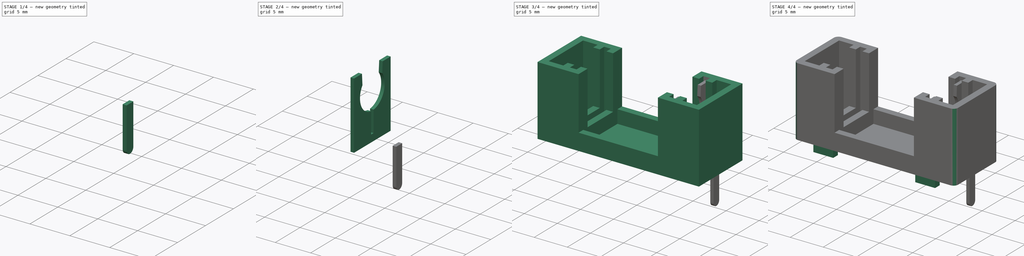
[diagram: build sequence overview — one tinted view per stage of 4, left to right]
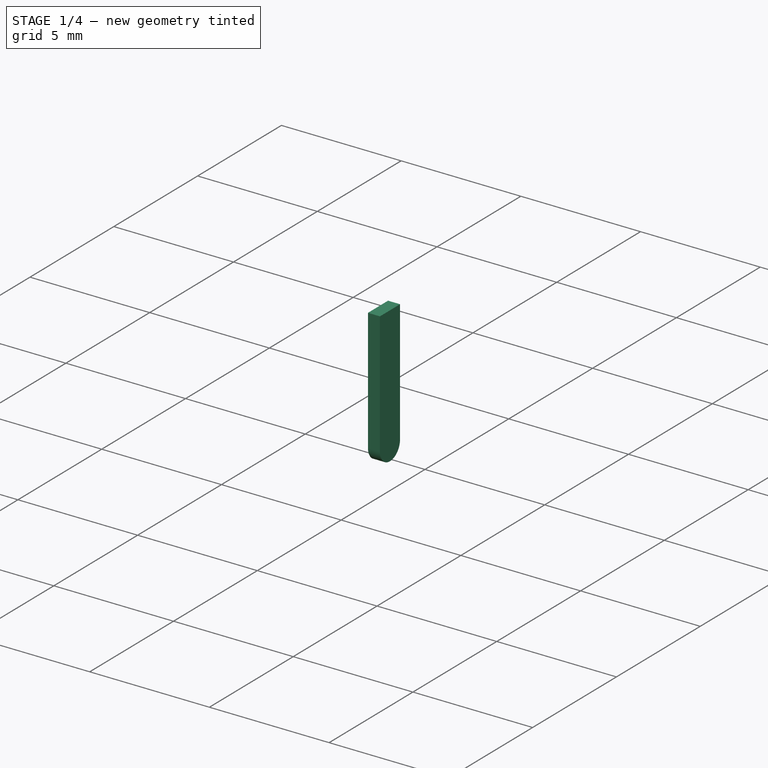
[diagram: stage 1 of 4 — iso view after this stage's code; geometry added in this stage tinted green]
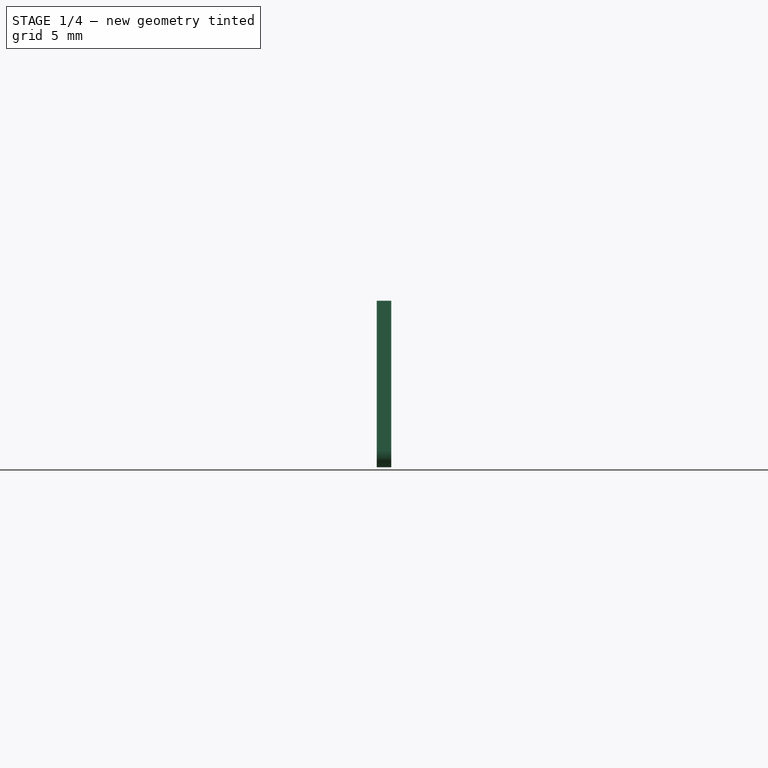
[diagram: stage 1 of 4 — front view after this stage's code; geometry added in this stage tinted green]
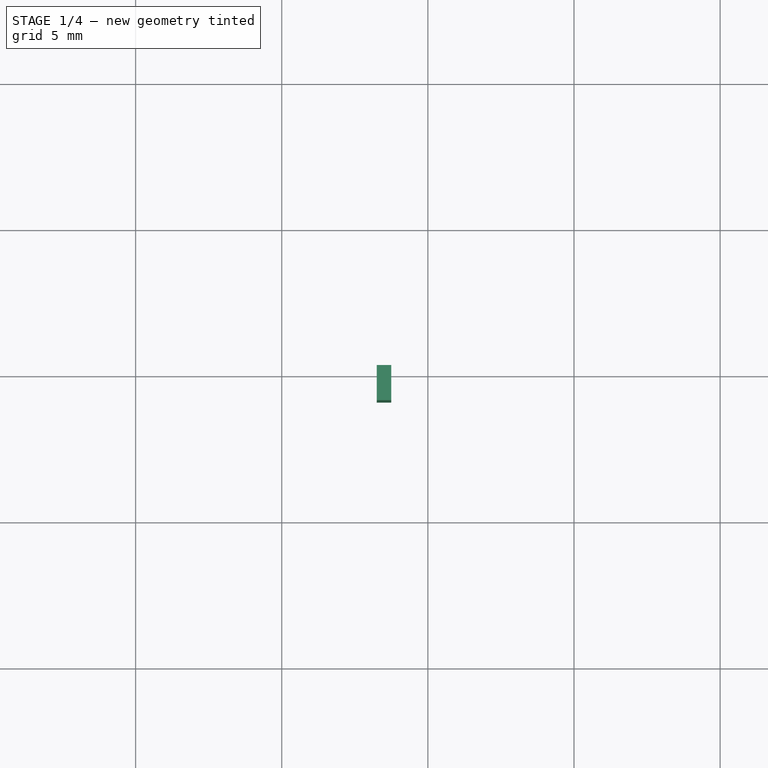
[diagram: stage 1 of 4 — top view after this stage's code; geometry added in this stage tinted green]
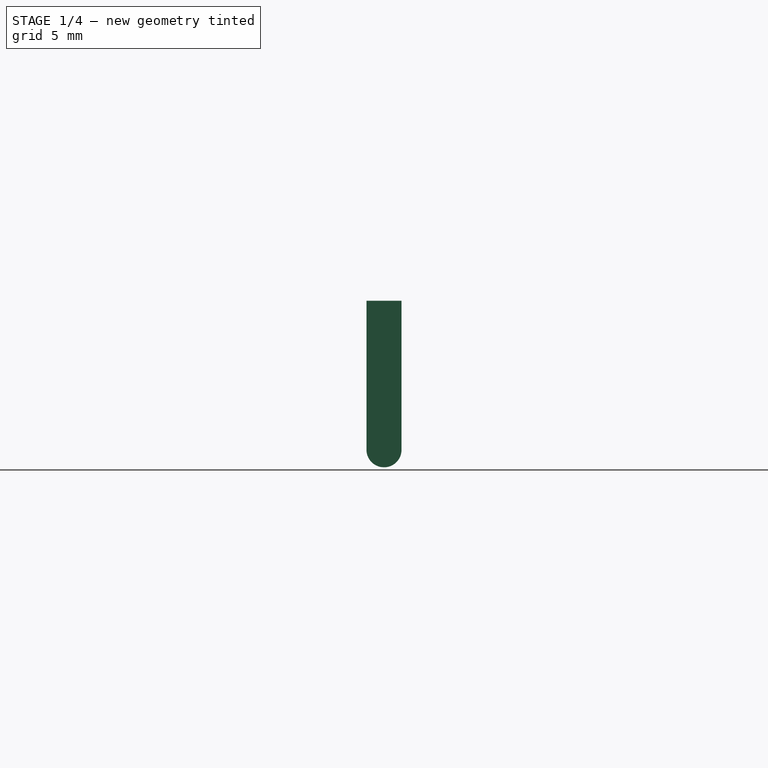
[diagram: stage 1 of 4 — right view after this stage's code; geometry added in this stage tinted green]
FCSTD DOCUMENT  (FreeCAD 0.17R13522 (Git))
Label: FUSE-HOLDER-PTF78
License: All rights reserved
LicenseURL: http://fr.wikipedia.org/wiki/<copyright redacted>
objects: Sketcher::SketchObject×6, PartDesign::Pad×4, PartDesign::Body×3, PartDesign::Pocket×2, PartDesign::FeatureBase×2, Spreadsheet::Sheet×1, PartDesign::Fillet×1
note: 24 computed .brp shape members not serialized (recipe doc carries the construction recipe); baked Part::Feature solids carry a one-line shape summary decoded from their .brp

FEATURE [PartDesign::Pad] Pad003
  Length = 0.5
  Length2 = 100
  Midplane = true
  Placement = pos=(0,0,0) rot=(0.57735,0.57735,0.57735;2.0944rad)
  Profile = -> Sketch005
  Type = 0
  expr: Length = Spreadsheet.pin_t
FEATURE [PartDesign::Body] Body002
  Group = -> [Sketch005,Pad003]
  Origin = -> Origin002
  Placement = pos=(0.9,4.7,-4) rot=(0,0,1;0rad)
  Tip = -> Pad003
FEATURE [PartDesign::FeatureBase] Clone001
  BaseFeature = -> Body002
  Placement = pos=(23.5,4.7,-4) rot=(0,0,1;0rad)
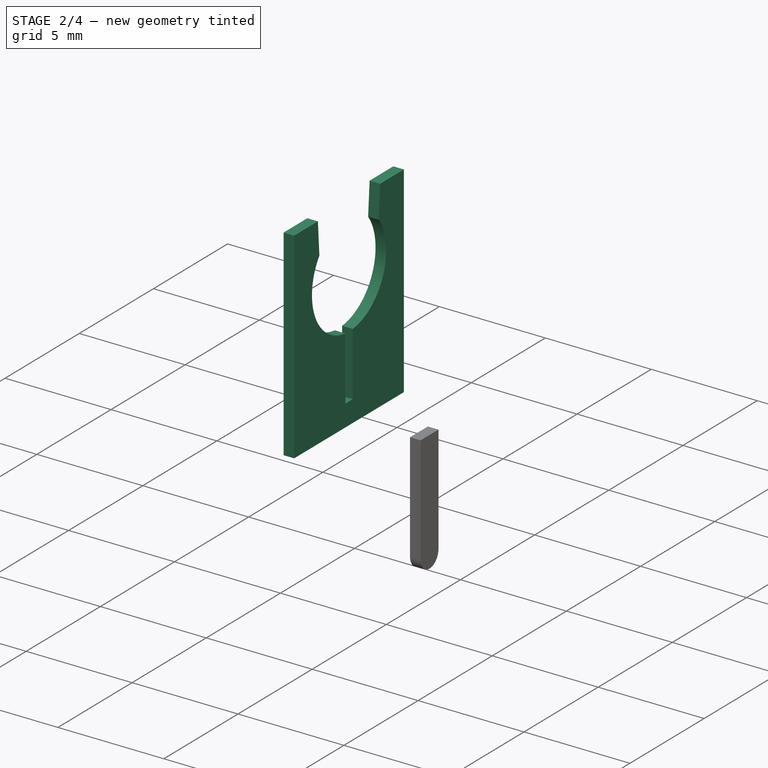
[diagram: stage 2 of 4 — iso view after this stage's code; geometry added in this stage tinted green]
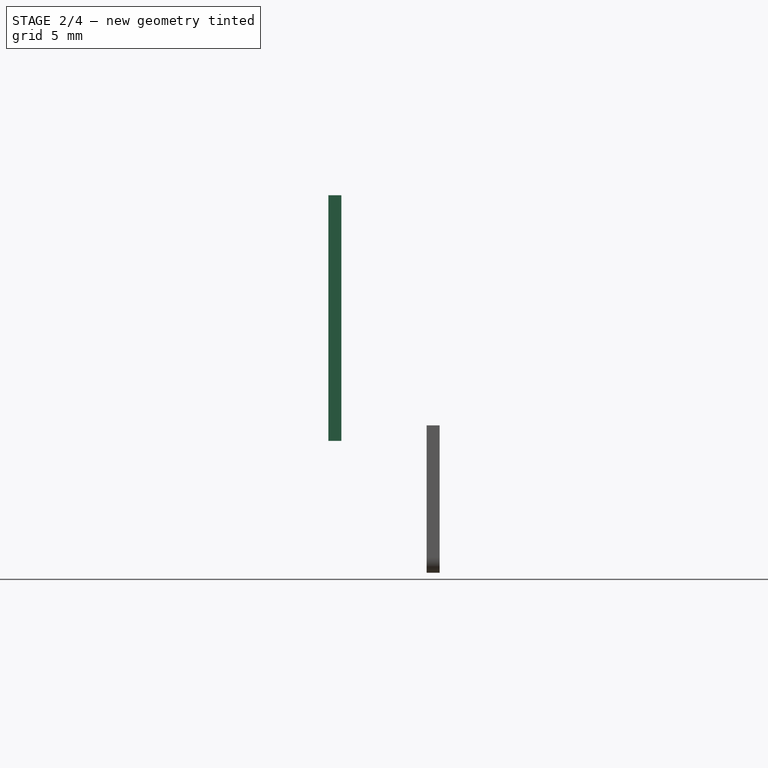
[diagram: stage 2 of 4 — front view after this stage's code; geometry added in this stage tinted green]
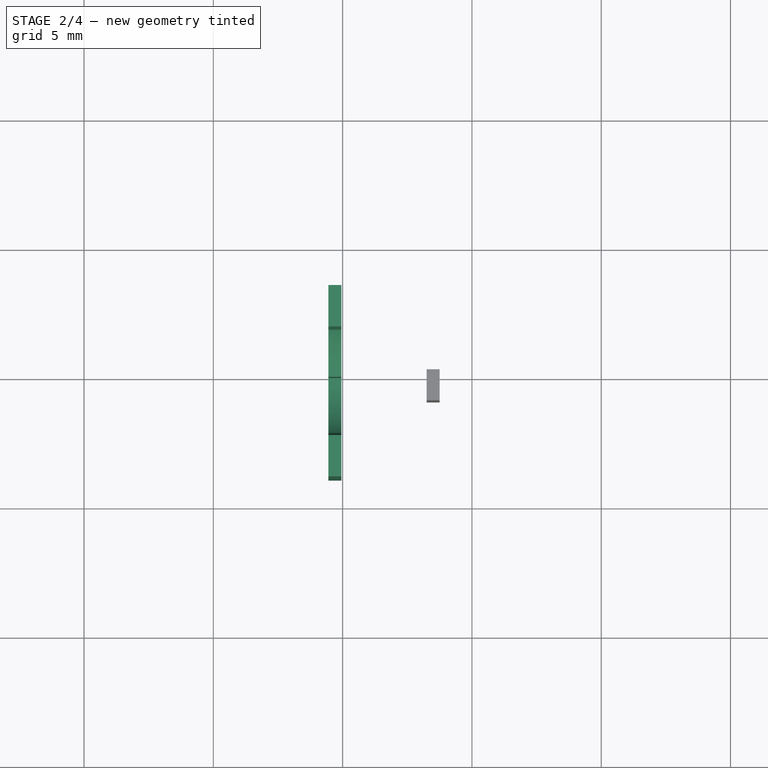
[diagram: stage 2 of 4 — top view after this stage's code; geometry added in this stage tinted green]
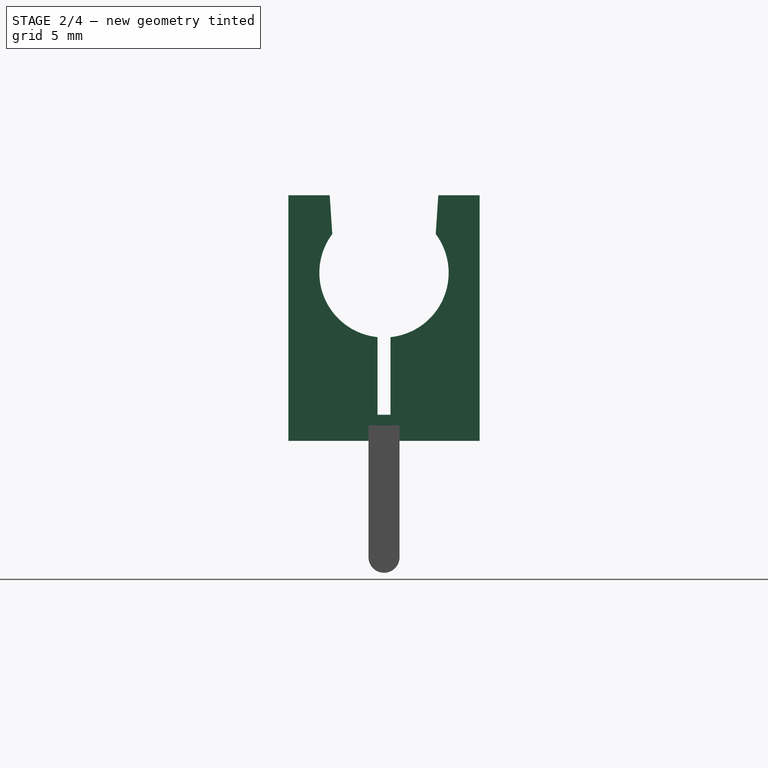
[diagram: stage 2 of 4 — right view after this stage's code; geometry added in this stage tinted green]
FEATURE [PartDesign::Body] Body
  Group = -> [Sketch,Pad,Sketch001,Pocket,Sketch002,Pocket001,Sketch003,Pad001,Fillet]
  Origin = -> Origin
  Tip = -> Fillet
FEATURE [Sketcher::SketchObject] Sketch004
  MapMode = 5
  Placement = pos=(0,0,0) rot=(0.57735,0.57735,0.57735;2.0944rad)
  Support = -> [YZ_Plane001]
  expr: Constraints[34] = Spreadsheet.fuse_d / 2
  expr: Constraints[9] = Spreadsheet.width - Spreadsheet.thickness * 2
  sketch-geometry (12):
    g0: LineSegment StartX=-3.7 StartY=3 StartZ=0 EndX=-3.7 EndY=-6.5 EndZ=0
    g1: LineSegment StartX=-3.7 StartY=-6.5 StartZ=0 EndX=3.7 EndY=-6.5 EndZ=0
    g2: LineSegment StartX=3.7 StartY=-6.5 StartZ=0 EndX=3.7 EndY=3 EndZ=0
    g3: LineSegment StartX=3.7 StartY=3 StartZ=0 EndX=2.1 EndY=3 EndZ=0
    g4: LineSegment StartX=-3.7 StartY=3 StartZ=0 EndX=-2.1 EndY=3 EndZ=0
    g5: LineSegment StartX=-2.1 StartY=3 StartZ=0 EndX=-2 EndY=1.5 EndZ=0
    g6: LineSegment StartX=2.1 StartY=3 StartZ=0 EndX=2 EndY=1.5 EndZ=0
    g7: ArcOfCircle CenterX=0 CenterY=0 CenterZ=0 NormalX=0 NormalY=0 NormalZ=1 AngleXU=0 Radius=2.5 StartAngle=2.49809 EndAngle=4.61222
    g8: ArcOfCircle CenterX=0 CenterY=0 CenterZ=0 NormalX=0 NormalY=0 NormalZ=1 AngleXU=0 Radius=2.5 StartAngle=4.81256 EndAngle=6.92669
    g9: LineSegment StartX=-0.25 StartY=-2.48747 StartZ=0 EndX=-0.25 EndY=-5.48747 EndZ=0
    g10: LineSegment StartX=-0.25 StartY=-5.48747 StartZ=0 EndX=0.25 EndY=-5.48747 EndZ=0
    g11: LineSegment StartX=0.25 StartY=-5.48747 StartZ=0 EndX=0.25 EndY=-2.48747 EndZ=0
  constraints (36):
    c: Vertical(g0)
    c: Coincident(g0,g1)
    c: Horizontal(g1)
    c: Vertical(g2)
    c: Coincident(g2,g3)
    c: Horizontal(g3)
    c: Coincident(g0,g4)
    c: Horizontal(g4)
    c: Horizontal(g3,g4)
    c: DistanceX(g0,g2) = 7.4
    c: Coincident(g5,g4)
    c: Coincident(g6,g3)
    c: Horizontal(g6,g5)
    c: Equal(g6,g5)
    c: DistanceY(g0,g0) = 9.5
    c: DistanceX(g5,g6) = 4
    c: DistanceX(g4,g3) = 4.2
    c: Coincident(g1,g2)
    c: Symmetric(g0,g1,g-2)
    c: Coincident(g7,g-1)
    c: Coincident(g7,g5)
    c: Coincident(g8,g-1)
    c: Coincident(g8,g6)
    c: Vertical(g9)
    c: Coincident(g10,g9)
    c: Horizontal(g10)
    c: Coincident(g11,g10)
    c: Vertical(g11)
    c: Coincident(g11,g8)
    c: Coincident(g7,g9)
    c: Horizontal(g7,g8)
    c: Symmetric(g7,g8,g-2)
    c: DistanceY(g9,g9) = 3
    c: DistanceX(g10,g10) = 0.5
    c: Radius(g7) = 2.5
    c: DistanceY(g1,g-1) = 6.5
FEATURE [PartDesign::Pad] Pad002
  Length = 0.5
  Length2 = 100
  Midplane = true
  Placement = pos=(0,0,0) rot=(0.57735,0.57735,0.57735;2.0944rad)
  Profile = -> Sketch004
  Type = 0
  expr: Length = Spreadsheet.pin_t
FEATURE [PartDesign::Body] Body001
  Group = -> [Sketch004,Pad002]
  Origin = -> Origin001
  Placement = pos=(4.7,4.7,7) rot=(0,0,1;0rad)
  Tip = -> Pad002
FEATURE [Sketcher::SketchObject] Sketch005
  MapMode = 5
  Placement = pos=(0,0,0) rot=(0.57735,0.57735,0.57735;2.0944rad)
  Support = -> [YZ_Plane002]
  expr: Constraints[6] = Spreadsheet.pin_l + Spreadsheet.thickness + Spreadsheet.pin_w / 2
  expr: Constraints[4] = Spreadsheet.pin_w
  sketch-geometry (4):
    g0: LineSegment StartX=-0.6 StartY=5.1 StartZ=0 EndX=-0.6 EndY=0 EndZ=0
    g1: ArcOfCircle CenterX=0 CenterY=0 CenterZ=0 NormalX=0 NormalY=0 NormalZ=1 AngleXU=0 Radius=0.6 StartAngle=3.14159 EndAngle=6.28319
    g2: LineSegment StartX=0.6 StartY=0 StartZ=0 EndX=0.6 EndY=5.1 EndZ=0
    g3: LineSegment StartX=-0.6 StartY=5.1 StartZ=0 EndX=0.6 EndY=5.1 EndZ=0
  constraints (11):
    c: Vertical(g0)
    c: Tangent(g1,g2) = -1.5708
    c: Vertical(g2)
    c: Horizontal(g0,g1)
    c: DistanceX(g0,g1) = 1.2
    c: Coincident(g1,g0)
    c: DistanceY(g1,g2) = 5.1
    c: Coincident(g1,g-1)
    c: Coincident(g3,g0)
    c: Coincident(g3,g2)
    c: Horizontal(g3)
FEATURE [PartDesign::FeatureBase] Clone
  BaseFeature = -> Body001
  Placement = pos=(19.7,4.7,7) rot=(0,0,1;0rad)
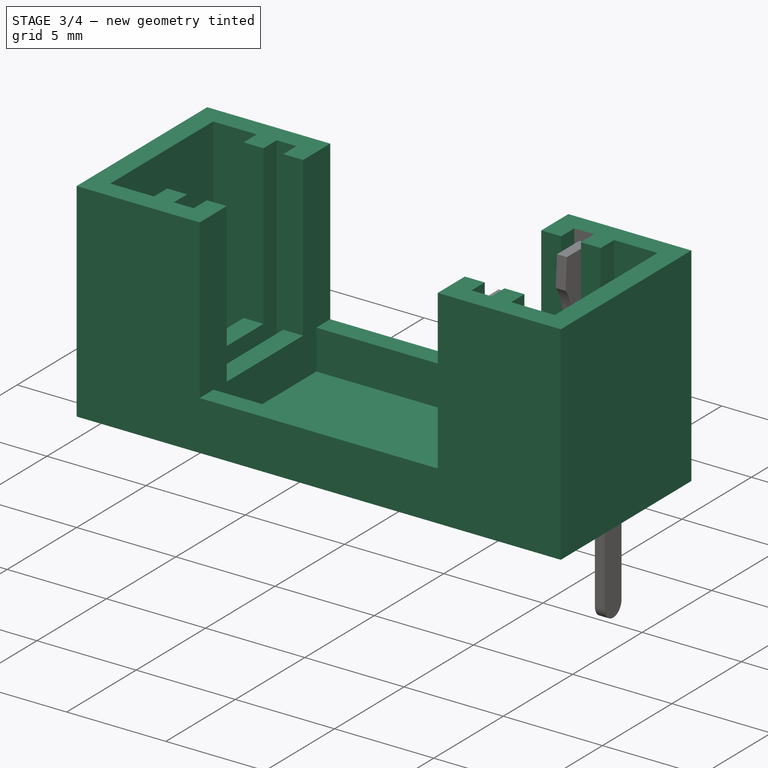
[diagram: stage 3 of 4 — iso view after this stage's code; geometry added in this stage tinted green]
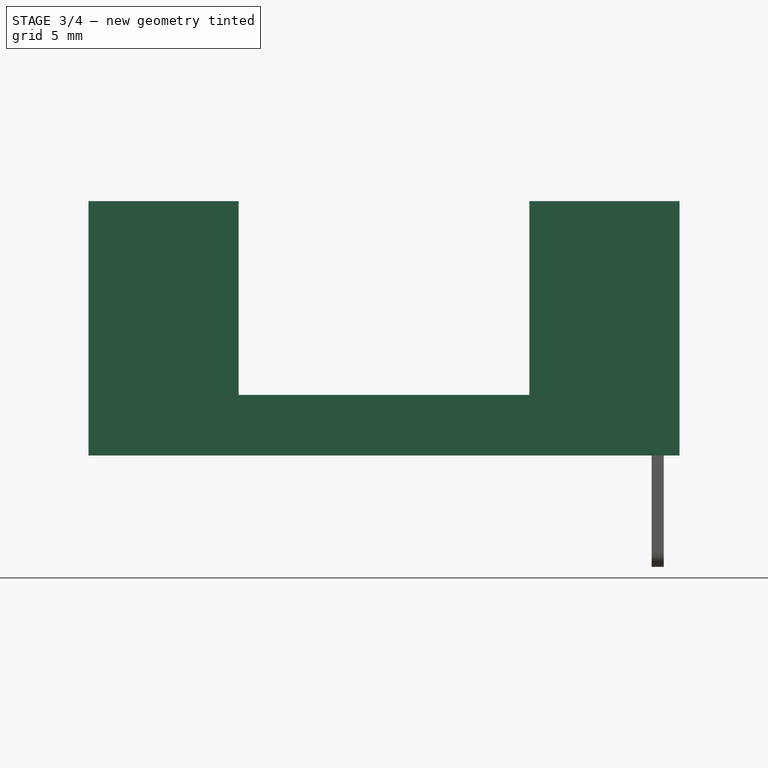
[diagram: stage 3 of 4 — front view after this stage's code; geometry added in this stage tinted green]
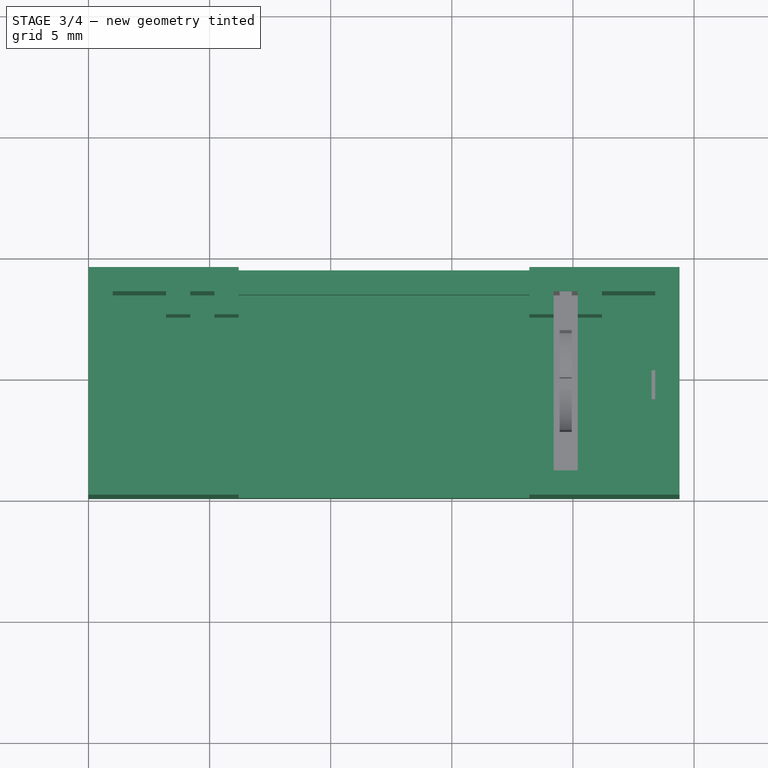
[diagram: stage 3 of 4 — top view after this stage's code; geometry added in this stage tinted green]
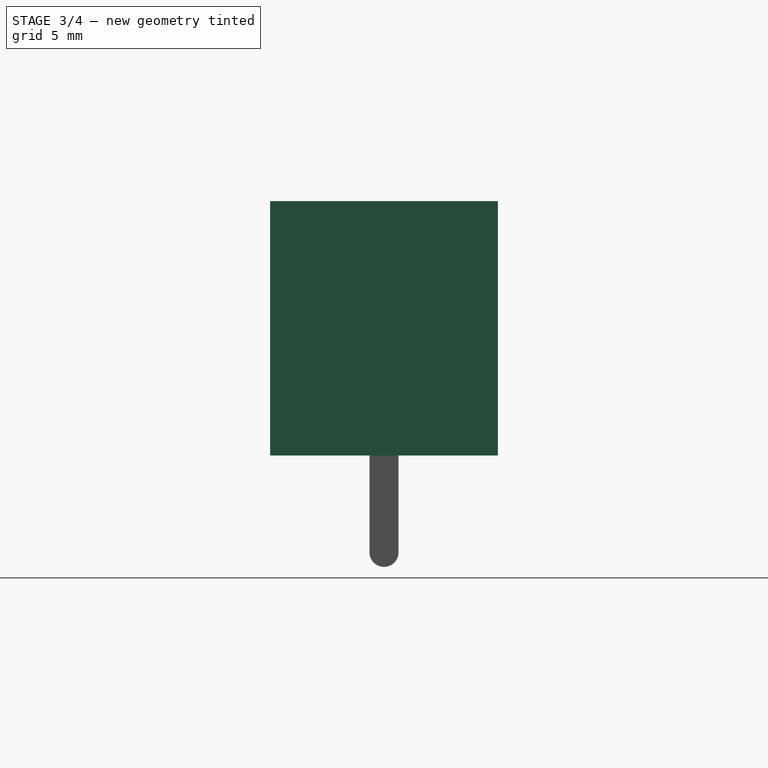
[diagram: stage 3 of 4 — right view after this stage's code; geometry added in this stage tinted green]
FEATURE [Sketcher::SketchObject] Sketch
  MapMode = 5
  Support = -> [XY_Plane]
  expr: Constraints[10] = Spreadsheet.width
  expr: Constraints[9] = Spreadsheet.length
  sketch-geometry (4):
    g0: LineSegment StartX=0 StartY=9.4 StartZ=0 EndX=24.4 EndY=9.4 EndZ=0
    g1: LineSegment StartX=24.4 StartY=9.4 StartZ=0 EndX=24.4 EndY=0 EndZ=0
    g2: LineSegment StartX=24.4 StartY=0 StartZ=0 EndX=0 EndY=0 EndZ=0
    g3: LineSegment StartX=0 StartY=0 StartZ=0 EndX=0 EndY=9.4 EndZ=0
  constraints (11):
    c: Coincident(g0,g1)
    c: Coincident(g1,g2)
    c: Coincident(g2,g3)
    c: Coincident(g3,g0)
    c: Horizontal(g0)
    c: Horizontal(g2)
    c: Vertical(g1)
    c: Vertical(g3)
    c: Coincident(g2,g-1)
    c: DistanceX(g0) = 24.4
    c: DistanceY(g0) = 9.4
FEATURE [PartDesign::Pad] Pad
  Length = 10.5
  Length2 = 100
  Profile = -> Sketch
  Type = 0
  expr: Length = Spreadsheet.height
FEATURE [Sketcher::SketchObject] Sketch001
  MapMode = 5
  Placement = pos=(0,0,10.5) rot=(0,0,1;0rad)
  Support = -> [Pad]
  expr: Constraints[60] = Spreadsheet.pin_t * 2
  expr: Constraints[4] = Spreadsheet.length - Spreadsheet.thickness
  expr: Constraints[5] = Spreadsheet.width - Spreadsheet.thickness
  expr: Constraints[56] = Spreadsheet.thickness
  expr: Constraints[22] = Spreadsheet.thickness
  expr: Constraints[8] = Spreadsheet.length / 2 - Spreadsheet.opening / 2
  expr: Constraints[58] = Spreadsheet.length / 2 + Spreadsheet.opening / 2
  expr: Constraints[3] = Spreadsheet.thickness
  expr: Constraints[57] = Spreadsheet.thickness
  expr: Constraints[2] = Spreadsheet.thickness
  expr: Constraints[59] = Spreadsheet.pin_t * 2
  expr: Constraints[9] = Spreadsheet.thickness
  sketch-geometry (20):
    g0: LineSegment StartX=23.4 StartY=8.4 StartZ=0 EndX=23.4 EndY=1 EndZ=0
    g1: LineSegment StartX=1 StartY=1 StartZ=0 EndX=1 EndY=8.4 EndZ=0
    g2: LineSegment StartX=6.2 StartY=8.4 StartZ=0 EndX=6.2 EndY=1 EndZ=0
    g3: LineSegment StartX=5.2 StartY=1 StartZ=0 EndX=5.2 EndY=8.4 EndZ=0
    g4: LineSegment StartX=3.2 StartY=8.4 StartZ=0 EndX=3.2 EndY=1 EndZ=0
    g5: LineSegment StartX=4.2 StartY=8.4 StartZ=0 EndX=4.2 EndY=1 EndZ=0
    g6: LineSegment StartX=1 StartY=8.4 StartZ=0 EndX=3.2 EndY=8.4 EndZ=0
    g7: LineSegment StartX=4.2 StartY=8.4 StartZ=0 EndX=5.2 EndY=8.4 EndZ=0
    g8: LineSegment StartX=5.2 StartY=1 StartZ=0 EndX=4.2 EndY=1 EndZ=0
    g9: LineSegment StartX=3.2 StartY=1 StartZ=0 EndX=1 EndY=1 EndZ=0
    g10: LineSegment StartX=21.2 StartY=8.4 StartZ=0 EndX=21.2 EndY=1 EndZ=0
    g11: LineSegment StartX=20.2 StartY=8.4 StartZ=0 EndX=20.2 EndY=1 EndZ=0
    g12: LineSegment StartX=19.2 StartY=8.4 StartZ=0 EndX=19.2 EndY=1 EndZ=0
    g13: LineSegment StartX=18.2 StartY=8.4 StartZ=0 EndX=18.2 EndY=1 EndZ=0
    g14: LineSegment StartX=18.2 StartY=8.4 StartZ=0 EndX=6.2 EndY=8.4 EndZ=0
    g15: LineSegment StartX=6.2 StartY=1 StartZ=0 EndX=18.2 EndY=1 EndZ=0
    g16: LineSegment StartX=19.2 StartY=1 StartZ=0 EndX=20.2 EndY=1 EndZ=0
    g17: LineSegment StartX=21.2 StartY=1 StartZ=0 EndX=23.4 EndY=1 EndZ=0
    g18: LineSegment StartX=23.4 StartY=8.4 StartZ=0 EndX=21.2 EndY=8.4 EndZ=0
    g19: LineSegment StartX=20.2 StartY=8.4 StartZ=0 EndX=19.2 EndY=8.4 EndZ=0
  constraints (61):
    c: Vertical(g0)
    c: Vertical(g1)
    c: DistanceX(g1) = 1
    c: DistanceY(g1) = 1
    c: DistanceX(g0) = 23.4
    c: DistanceY(g0) = 8.4
    c: Vertical(g2)
    c: Vertical(g3)
    c: DistanceX(g-1,g2) = 6.2
    c: DistanceX(g3,g2) = 1
    c: Vertical(g4)
    c: Vertical(g5)
    c: Coincident(g6,g1)
    c: Coincident(g6,g4)
    c: Horizontal(g6)
    c: Coincident(g7,g5)
    c: Coincident(g7,g3)
    c: Coincident(g8,g3)
    c: Coincident(g8,g5)
    c: Horizontal(g8)
    c: Coincident(g9,g4)
    c: Horizontal(g9)
    c: DistanceX(g4,g5) = 1
    c: Coincident(g9,g1)
    c: Horizontal(g5,g4)
    c: Horizontal(g7)
    c: Horizontal(g3,g2)
    c: Horizontal(g2,g3)
    c: Horizontal(g5,g4)
    c: Vertical(g10)
    c: Vertical(g11)
    c: Vertical(g12)
    c: Vertical(g13)
    c: Coincident(g14,g13)
    c: Coincident(g14,g2)
    c: Horizontal(g14)
    c: Coincident(g15,g2)
    c: Coincident(g15,g13)
    c: Horizontal(g15)
    c: Coincident(g16,g12)
    c: Coincident(g16,g11)
    c: Horizontal(g16)
    c: Horizontal(g13,g12)
    c: Horizontal(g11,g10)
    c: Coincident(g17,g10)
    c: Coincident(g17,g0)
    c: Horizontal(g17)
    c: PointOnObject(g18,g0)
    c: Coincident(g18,g10)
    c: Coincident(g19,g11)
    c: Coincident(g19,g12)
    c: Horizontal(g19)
    c: Horizontal(g18)
    c: Coincident(g18,g0)
    c: Horizontal(g11,g10)
    c: Horizontal(g10,g13)
    c: DistanceX(g13,g12) = 1
    c: DistanceX(g11,g10) = 1
    c: DistanceX(g-1,g13) = 18.2
    c: DistanceX(g8,g8) = 1
    c: DistanceX(g16,g16) = 1
FEATURE [PartDesign::Pocket] Pocket
  BaseFeature = -> Pad
  Length = 10
  Length2 = 100
  Profile = -> Sketch001
  Type = 0
FEATURE [Spreadsheet::Sheet] Spreadsheet
  cells = A1=width; B1(width)=9.4000000000000004; A2=length; B2(length)=24.399999999999999; A3=thickness; B3(thickness)=1; A4=height; B4(height)=10.5; A5=opening; B5(opening)=12; A6=opening_height; B6(opening_height)=8; A7=fuse_d; B7(fuse_d)=5; A8=fuse_l; B8(fuse_l)=20; A9=pin_t; B9(pin_t)=0.5; A10=pin_w; B10(pin_w)=1.2; A11=pin_rm; B11(pin_rm)=22.600000000000001; A12=pin_l; B12(pin_l)=3.5
FEATURE [Sketcher::SketchObject] Sketch002
  MapMode = 5
  Placement = pos=(0,0,10.5) rot=(0,0,1;0rad)
  Support = -> [Pocket]
  expr: Constraints[34] = Spreadsheet.width / 2 - Spreadsheet.fuse_d / 2 - 0.25
  expr: Constraints[35] = Spreadsheet.fuse_l
  expr: Constraints[33] = (Spreadsheet.length - Spreadsheet.fuse_l) / 2
  expr: Constraints[17] = Spreadsheet.fuse_d + 0.5
  expr: Constraints[2] = Spreadsheet.opening
  expr: Constraints[5] = Spreadsheet.length / 2 - Spreadsheet.opening / 2
  expr: Constraints[3] = Spreadsheet.width
  sketch-geometry (12):
    g0: LineSegment StartX=6.2 StartY=9.4 StartZ=0 EndX=18.2 EndY=9.4 EndZ=0
    g1: LineSegment StartX=18.2 StartY=0 StartZ=0 EndX=6.2 EndY=0 EndZ=0
    g2: LineSegment StartX=6.2 StartY=9.4 StartZ=0 EndX=6.2 EndY=7.45 EndZ=0
    g3: LineSegment StartX=6.2 StartY=7.45 StartZ=0 EndX=2.2 EndY=7.45 EndZ=0
    g4: LineSegment StartX=2.2 StartY=7.45 StartZ=0 EndX=2.2 EndY=1.95 EndZ=0
    g5: LineSegment StartX=2.2 StartY=1.95 StartZ=0 EndX=6.2 EndY=1.95 EndZ=0
    g6: LineSegment StartX=6.2 StartY=1.95 StartZ=0 EndX=6.2 EndY=0 EndZ=0
    g7: LineSegment StartX=18.2 StartY=9.4 StartZ=0 EndX=18.2 EndY=7.45 EndZ=0
    g8: LineSegment StartX=18.2 StartY=7.45 StartZ=0 EndX=22.2 EndY=7.45 EndZ=0
    g9: LineSegment StartX=22.2 StartY=7.45 StartZ=0 EndX=22.2 EndY=1.95 EndZ=0
    g10: LineSegment StartX=22.2 StartY=1.95 StartZ=0 EndX=18.2 EndY=1.95 EndZ=0
    g11: LineSegment StartX=18.2 StartY=1.95 StartZ=0 EndX=18.2 EndY=0 EndZ=0
  constraints (37):
    c: Horizontal(g0)
    c: Horizontal(g1)
    c: DistanceX(g0,g0) = 12
    c: DistanceY(g1,g0) = 9.4
    c: PointOnObject(g1,g-1)
    c: DistanceX(g-1,g1) = 6.2
    c: PointOnObject(g2,g0)
    c: Vertical(g2)
    c: Coincident(g3,g2)
    c: Horizontal(g3)
    c: Vertical(g4)
    c: Coincident(g5,g4)
    c: Horizontal(g5)
    c: Coincident(g6,g1)
    c: Vertical(g6)
    c: Coincident(g5,g6)
    c: Vertical(g2,g5)
    c: DistanceY(g4,g4) = 5.5
    c: Coincident(g3,g4)
    c: Coincident(g0,g7)
    c: Vertical(g7)
    c: Coincident(g7,g8)
    c: Horizontal(g8)
    c: Coincident(g8,g9)
    c: Vertical(g9)
    c: Coincident(g9,g10)
    c: Horizontal(g10)
    c: Coincident(g10,g11)
    c: Coincident(g11,g1)
    c: Vertical(g11)
    c: Vertical(g10,g7)
    c: Horizontal(g7,g2)
    c: Horizontal(g10,g5)
    c: DistanceX(g4) = 2.2
    c: DistanceY(g4) = 1.95
    c: DistanceX(g4,g9) = 20
    c: Coincident(g0,g2)
FEATURE [PartDesign::Pocket] Pocket001
  BaseFeature = -> Pocket
  Length = 8
  Length2 = 100
  Profile = -> Sketch002
  Type = 0
  expr: Length = Spreadsheet.opening_height
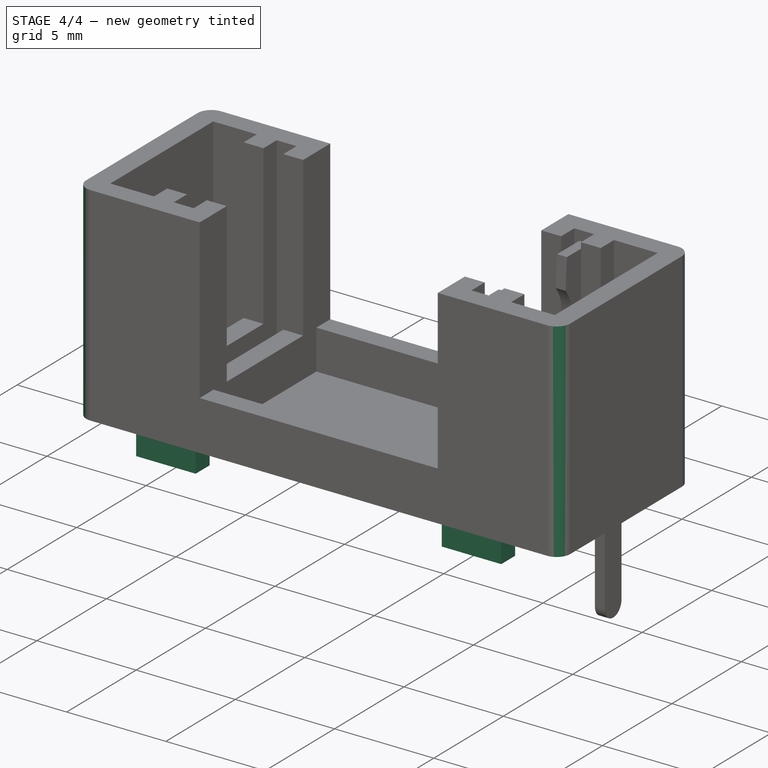
[diagram: stage 4 of 4 — iso view after this stage's code; geometry added in this stage tinted green]
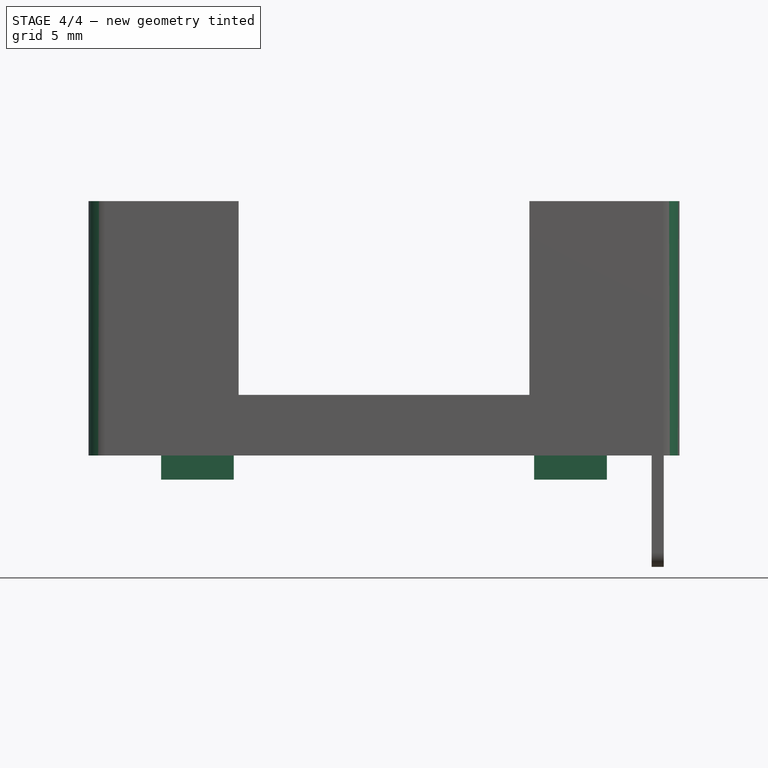
[diagram: stage 4 of 4 — front view after this stage's code; geometry added in this stage tinted green]
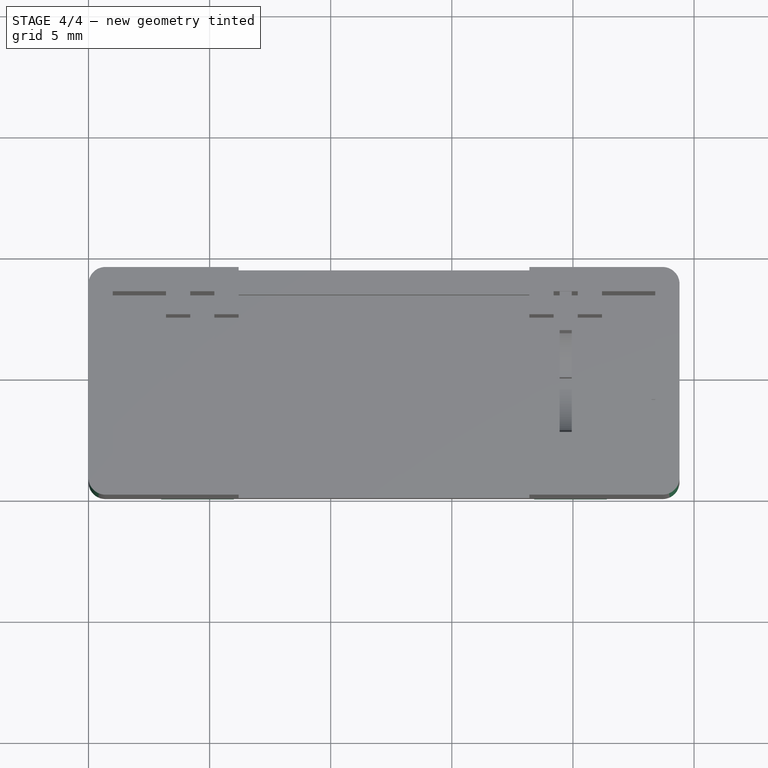
[diagram: stage 4 of 4 — top view after this stage's code; geometry added in this stage tinted green]
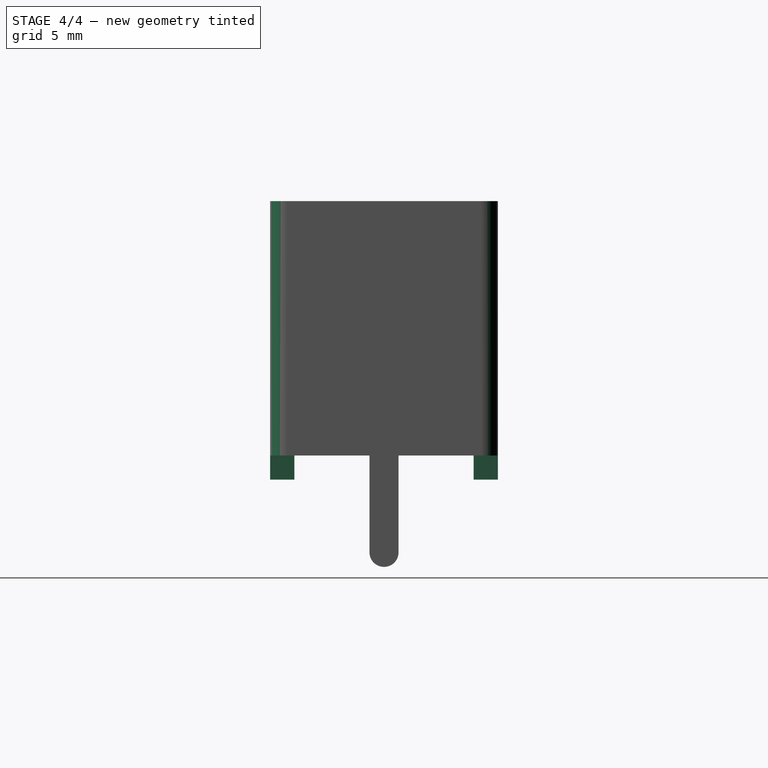
[diagram: stage 4 of 4 — right view after this stage's code; geometry added in this stage tinted green]
FEATURE [Sketcher::SketchObject] Sketch003
  MapMode = 5
  Placement = pos=(0,0,0) rot=(1,0,0;3.14159rad)
  Support = -> [Pocket001]
  expr: Constraints[38] = Spreadsheet.width
  expr: Constraints[36] = Spreadsheet.length - 3
  sketch-geometry (16):
    g0: LineSegment StartX=3 StartY=0 StartZ=0 EndX=6 EndY=0 EndZ=0
    g1: LineSegment StartX=6 StartY=0 StartZ=0 EndX=6 EndY=-1 EndZ=0
    g2: LineSegment StartX=6 StartY=-1 StartZ=0 EndX=3 EndY=-1 EndZ=0
    g3: LineSegment StartX=3 StartY=-1 StartZ=0 EndX=3 EndY=0 EndZ=0
    g4: LineSegment StartX=18.4 StartY=0 StartZ=0 EndX=21.4 EndY=0 EndZ=0
    g5: LineSegment StartX=21.4 StartY=0 StartZ=0 EndX=21.4 EndY=-1 EndZ=0
    g6: LineSegment StartX=21.4 StartY=-1 StartZ=0 EndX=18.4 EndY=-1 EndZ=0
    g7: LineSegment StartX=18.4 StartY=-1 StartZ=0 EndX=18.4 EndY=0 EndZ=0
    g8: LineSegment StartX=3 StartY=-9.4 StartZ=0 EndX=6 EndY=-9.4 EndZ=0
    g9: LineSegment StartX=6 StartY=-9.4 StartZ=0 EndX=6 EndY=-8.4 EndZ=0
    g10: LineSegment StartX=6 StartY=-8.4 StartZ=0 EndX=3 EndY=-8.4 EndZ=0
    g11: LineSegment StartX=3 StartY=-8.4 StartZ=0 EndX=3 EndY=-9.4 EndZ=0
    g12: LineSegment StartX=18.4 StartY=-9.4 StartZ=0 EndX=21.4 EndY=-9.4 EndZ=0
    g13: LineSegment StartX=21.4 StartY=-9.4 StartZ=0 EndX=21.4 EndY=-8.4 EndZ=0
    g14: LineSegment StartX=21.4 StartY=-8.4 StartZ=0 EndX=18.4 EndY=-8.4 EndZ=0
    g15: LineSegment StartX=18.4 StartY=-8.4 StartZ=0 EndX=18.4 EndY=-9.4 EndZ=0
  constraints (48):
    c: Coincident(g0,g1)
    c: Coincident(g1,g2)
    c: Coincident(g2,g3)
    c: Coincident(g3,g0)
    c: Horizontal(g0)
    c: Horizontal(g2)
    c: Vertical(g1)
    c: Vertical(g3)
    c: PointOnObject(g0,g-1)
    c: Coincident(g4,g5)
    c: Coincident(g5,g6)
    c: Coincident(g6,g7)
    c: Coincident(g7,g4)
    c: Horizontal(g4)
    c: Horizontal(g6)
    c: Vertical(g5)
    c: Vertical(g7)
    c: PointOnObject(g4,g-1)
    c: Coincident(g8,g9)
    c: Coincident(g9,g10)
    c: Coincident(g10,g11)
    c: Coincident(g11,g8)
    c: Horizontal(g8)
    c: Horizontal(g10)
    c: Vertical(g9)
    c: Vertical(g11)
    c: Coincident(g12,g13)
    c: Coincident(g13,g14)
    c: Coincident(g14,g15)
    c: Coincident(g15,g12)
    c: Horizontal(g12)
    c: Horizontal(g14)
    c: Vertical(g13)
    c: Vertical(g15)
    c: DistanceX(g0,g0) = 3
    c: DistanceX(g-1,g0) = 3
    c: DistanceX(g-1,g4) = 21.4
    c: DistanceX(g4,g4) = 3
    c: DistanceY(g8,g-1) = 9.4
    c: DistanceY(g3,g3) = 1
    c: DistanceY(g11,g11) = 1
    c: Vertical(g2,g10)
    c: Vertical(g1,g9)
    c: Vertical(g6,g14)
    c: Vertical(g13,g5)
    c: Horizontal(g12,g8)
    c: Horizontal(g14,g9)
    c: Horizontal(g1,g6)
FEATURE [PartDesign::Pad] Pad001
  BaseFeature = -> Pocket001
  Length = 1
  Length2 = 100
  Profile = -> Sketch003
  Type = 0
FEATURE [PartDesign::Fillet] Fillet
  Base = -> Pad001 [Edge6,Edge1,Edge25,Edge2]
  BaseFeature = -> Pad001
  Radius = 0.7
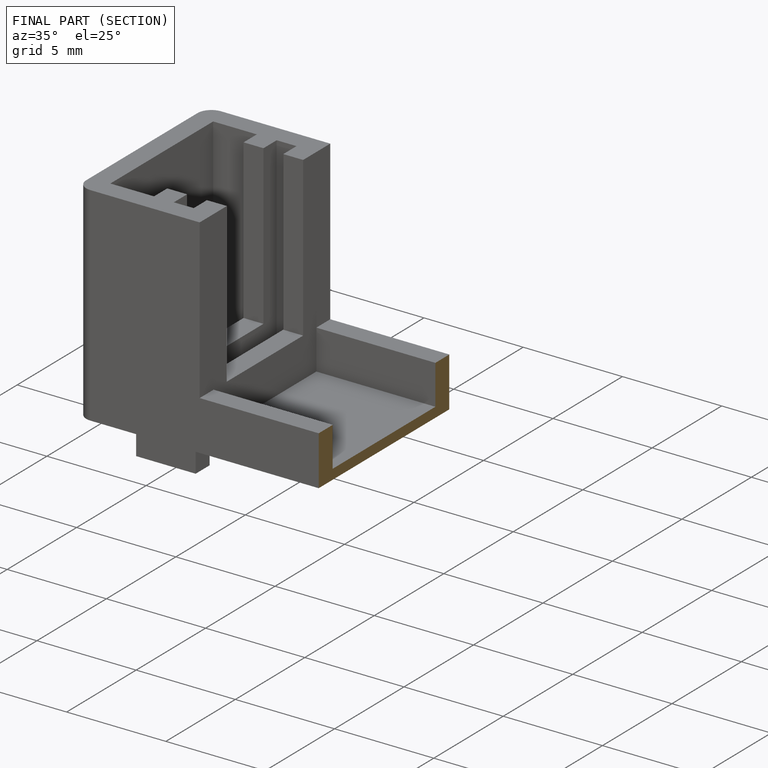
[diagram: finished part — half-section view (interior)]
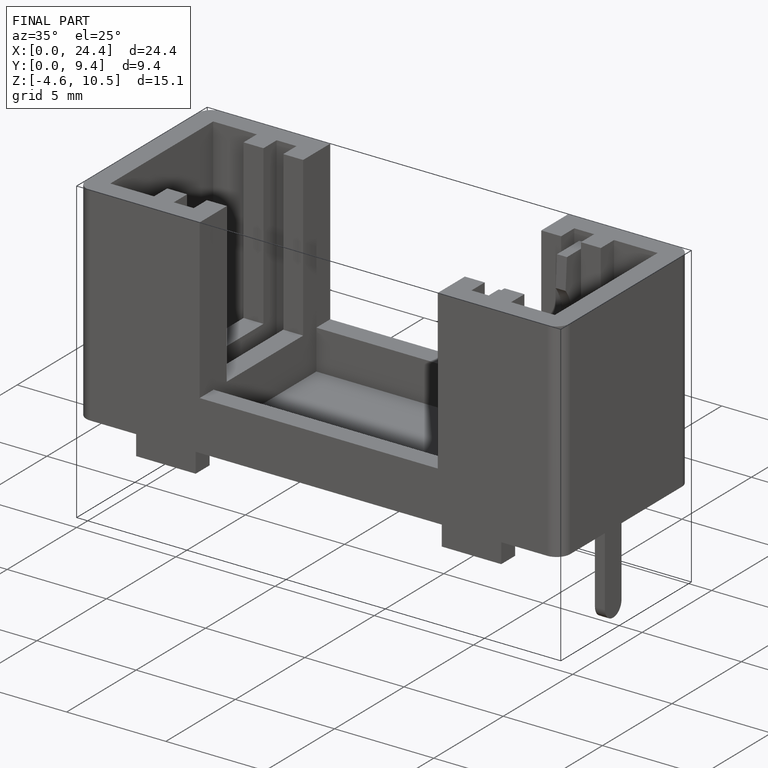
[diagram: finished part — iso view with bounding-box wireframe]
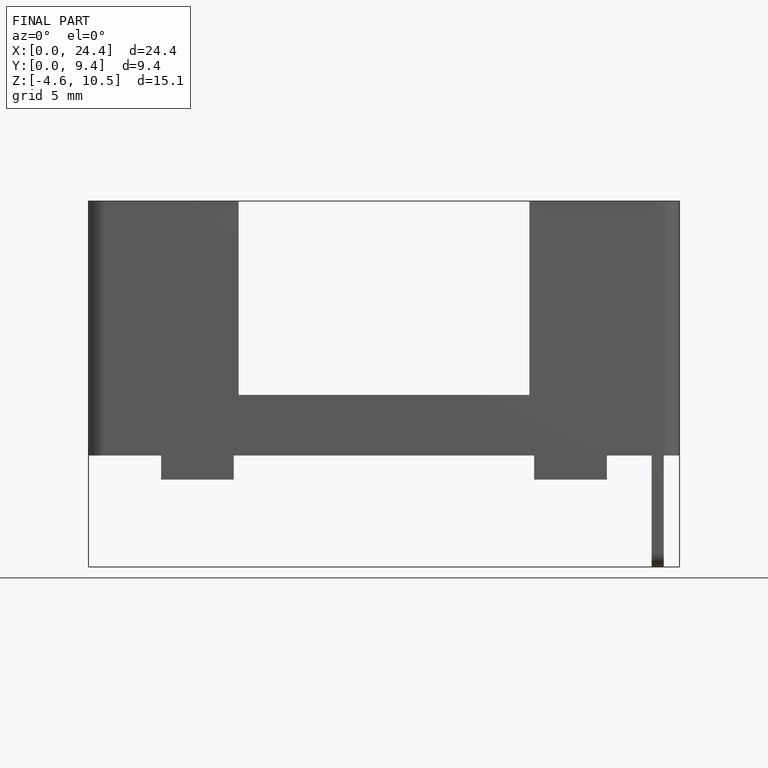
[diagram: finished part — front view with bounding-box wireframe]
